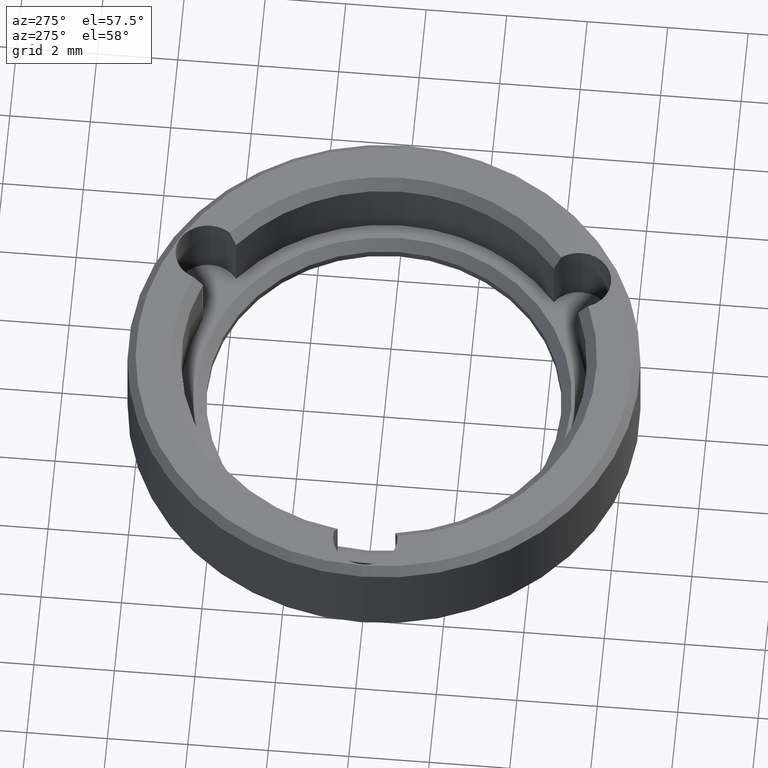
[diagram: clean part render]
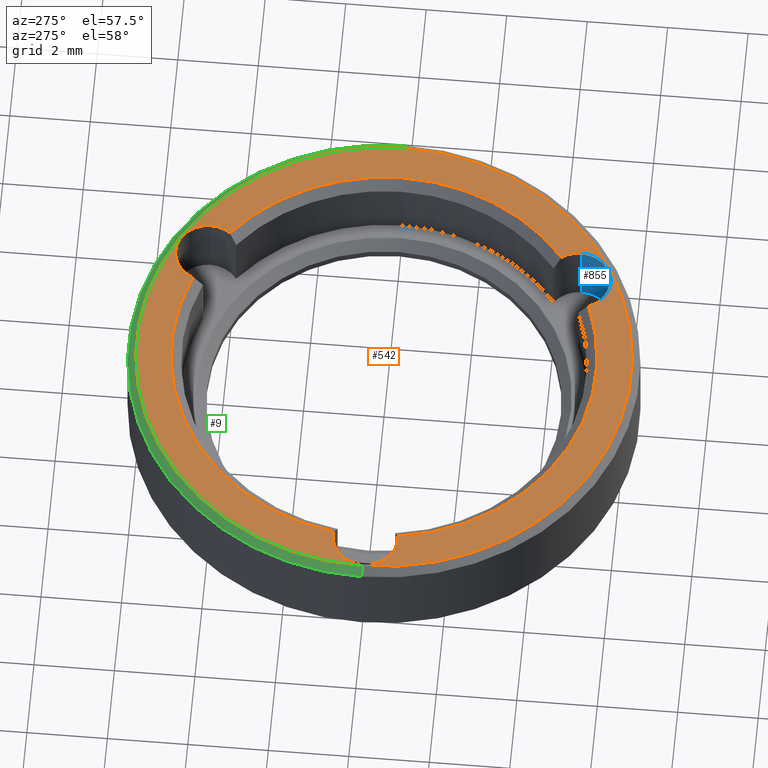
[diagram: same view with three faces highlighted in distinct colors, each labeled with its STEP entity id]
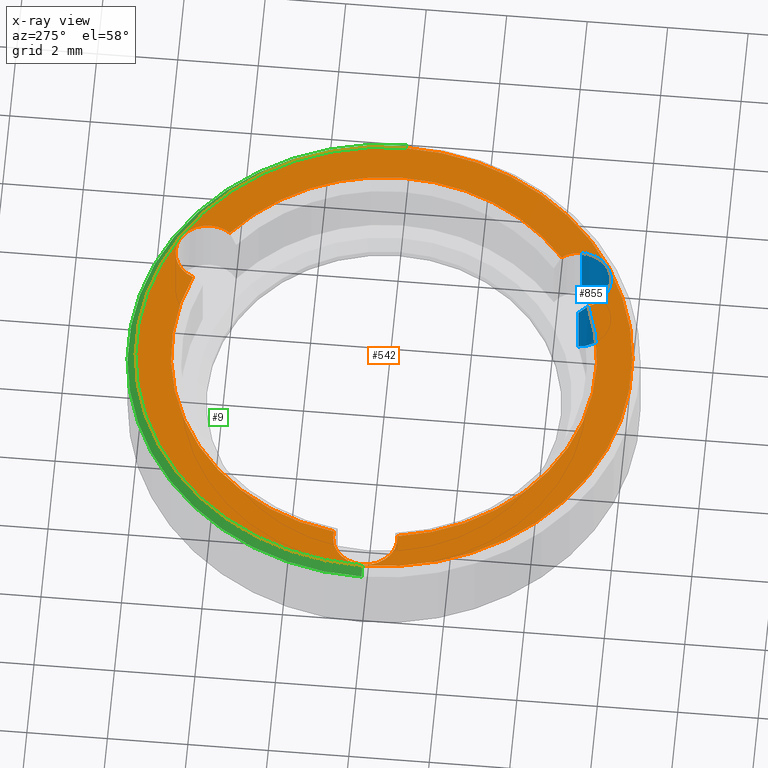
[diagram: x-ray of the same camera — body ghosted, the three highlighted faces saturated]
A machine part, auxiliary view with three faces highlighted in distinct colors.
The next image is the same camera in x-ray (body ghosted, the three faces saturated) — at least one of them is partly hidden behind the body in this view.
Their STEP definitions:

[orange] entity #542 — the highlighted planar face has unit normal (0, 0, 1).
#14 = EDGE_LOOP ( 'NONE', ( #421, #575 ) ) ;
#20 = ORIENTED_EDGE ( 'NONE', *, *, #68, .F. ) ;
#25 = ORIENTED_EDGE ( 'NONE', *, *, #703, .F. ) ;
#35 = DIRECTION ( 'NONE',  ( 0.000000000000000000, 0.000000000000000000, 1.000000000000000000 ) ) ;
#43 = AXIS2_PLACEMENT_3D ( 'NONE', #224, #650, #218 ) ;
#60 = CIRCLE ( 'NONE', #146, 6.149999999999997691 ) ;
#64 = DIRECTION ( 'NONE',  ( 1.000000000000000000, 1.776356839400250465E-15, 0.000000000000000000 ) ) ;
#68 = EDGE_CURVE ( 'NONE', #430, #885, #745, .T. ) ;
#89 = CIRCLE ( 'NONE', #609, 0.8000000000000012657 ) ;
#99 = EDGE_CURVE ( 'NONE', #250, #430, #707, .T. ) ;
#134 = CARTESIAN_POINT ( 'NONE',  ( 0.000000000000000000, 0.000000000000000000, 2.500000000000000000 ) ) ;
#140 = DIRECTION ( 'NONE',  ( 0.000000000000000000, 0.000000000000000000, 1.000000000000000000 ) ) ;
#145 = CIRCLE ( 'NONE', #427, 5.275000000000003908 ) ;
#146 = AXIS2_PLACEMENT_3D ( 'NONE', #247, #35, #300 ) ;
#148 = DIRECTION ( 'NONE',  ( 1.000000000000000000, -8.881784197001252323E-16, 0.000000000000000000 ) ) ;
#149 = CARTESIAN_POINT ( 'NONE',  ( 2.662500000000021849, -4.611585275152124019, 2.500000000000000000 ) ) ;
#155 = ORIENTED_EDGE ( 'NONE', *, *, #260, .T. ) ;
#173 = EDGE_CURVE ( 'NONE', #250, #899, #236, .T. ) ;
#185 = VERTEX_POINT ( 'NONE', #418 ) ;
#205 = EDGE_CURVE ( 'NONE', #185, #476, #349, .T. ) ;
#213 = CARTESIAN_POINT ( 'NONE',  ( 0.000000000000000000, 0.000000000000000000, 2.500000000000000000 ) ) ;
#218 = DIRECTION ( 'NONE',  ( 1.000000000000000000, 0.000000000000000000, 0.000000000000000000 ) ) ;
#224 = CARTESIAN_POINT ( 'NONE',  ( 0.000000000000000000, 0.000000000000000000, 2.500000000000000000 ) ) ;
#234 = VERTEX_POINT ( 'NONE', #496 ) ;
#236 = CIRCLE ( 'NONE', #442, 5.275000000000003908 ) ;
#242 = CARTESIAN_POINT ( 'NONE',  ( 3.462499999999957723, 4.611585275152160435, 2.500000000000000000 ) ) ;
#247 = CARTESIAN_POINT ( 'NONE',  ( 0.000000000000000000, 0.000000000000000000, 2.500000000000000000 ) ) ;
#250 = VERTEX_POINT ( 'NONE', #711 ) ;
#253 = VERTEX_POINT ( 'NONE', #858 ) ;
#260 = EDGE_CURVE ( 'NONE', #899, #253, #869, .T. ) ;
#266 = DIRECTION ( 'NONE',  ( 0.000000000000000000, 0.000000000000000000, 1.000000000000000000 ) ) ;
#300 = DIRECTION ( 'NONE',  ( 1.000000000000000000, 0.000000000000000000, 0.000000000000000000 ) ) ;
#306 = CARTESIAN_POINT ( 'NONE',  ( 5.275000000000003908, 0.000000000000000000, 2.500000000000000000 ) ) ;
#315 = ORIENTED_EDGE ( 'NONE', *, *, #715, .T. ) ;
#322 = AXIS2_PLACEMENT_3D ( 'NONE', #149, #502, #579 ) ;
#324 = AXIS2_PLACEMENT_3D ( 'NONE', #213, #352, #148 ) ;
#333 = DIRECTION ( 'NONE',  ( 0.000000000000000000, 0.000000000000000000, 1.000000000000000000 ) ) ;
#346 = CARTESIAN_POINT ( 'NONE',  ( 3.462500000000023004, -4.611585275152124019, 2.500000000000000000 ) ) ;
#349 = CIRCLE ( 'NONE', #322, 0.8000000000000012657 ) ;
#352 = DIRECTION ( 'NONE',  ( -0.000000000000000000, -0.000000000000000000, -1.000000000000000000 ) ) ;
#364 = AXIS2_PLACEMENT_3D ( 'NONE', #559, #266, #545 ) ;
#404 = DIRECTION ( 'NONE',  ( -0.000000000000000000, -0.000000000000000000, -1.000000000000000000 ) ) ;
#405 = CARTESIAN_POINT ( 'NONE',  ( 2.662499999999956568, 4.611585275152160435, 2.500000000000000000 ) ) ;
#409 = AXIS2_PLACEMENT_3D ( 'NONE', #405, #907, #690 ) ;
#418 = CARTESIAN_POINT ( 'NONE',  ( 1.921313747115156234, -4.912654932431785859, 2.500000000000000000 ) ) ;
#419 = DIRECTION ( 'NONE',  ( 1.000000000000000000, 0.000000000000000000, 0.000000000000000000 ) ) ;
#421 = ORIENTED_EDGE ( 'NONE', *, *, #831, .T. ) ;
#427 = AXIS2_PLACEMENT_3D ( 'NONE', #483, #404, #618 ) ;
#430 = VERTEX_POINT ( 'NONE', #242 ) ;
#442 = AXIS2_PLACEMENT_3D ( 'NONE', #134, #699, #64 ) ;
#468 = CARTESIAN_POINT ( 'NONE',  ( 2.662500000000021849, -4.611585275152124019, 2.500000000000000000 ) ) ;
#476 = VERTEX_POINT ( 'NONE', #346 ) ;
#478 = ORIENTED_EDGE ( 'NONE', *, *, #603, .F. ) ;
#483 = CARTESIAN_POINT ( 'NONE',  ( 0.000000000000000000, 0.000000000000000000, 2.500000000000000000 ) ) ;
#489 = AXIS2_PLACEMENT_3D ( 'NONE', #520, #806, #881 ) ;
#496 = CARTESIAN_POINT ( 'NONE',  ( -5.215140845070425968, 0.7924209525739209781, 2.500000000000000000 ) ) ;
#499 = EDGE_CURVE ( 'NONE', #185, #743, #145, .T. ) ;
#502 = DIRECTION ( 'NONE',  ( 0.000000000000000000, 0.000000000000000000, 1.000000000000000000 ) ) ;
#518 = ORIENTED_EDGE ( 'NONE', *, *, #173, .T. ) ;
#520 = CARTESIAN_POINT ( 'NONE',  ( 0.000000000000000000, 0.000000000000000000, 2.500000000000000000 ) ) ;
#542 = ADVANCED_FACE ( 'NONE', ( #767, #900 ), #692, .T. ) ;
#545 = DIRECTION ( 'NONE',  ( -0.4999999999999920064, -0.8660254037844432595, 0.000000000000000000 ) ) ;
#554 = DIRECTION ( 'NONE',  ( 0.000000000000000000, 0.000000000000000000, 1.000000000000000000 ) ) ;
#559 = CARTESIAN_POINT ( 'NONE',  ( 2.662499999999956568, 4.611585275152160435, 2.500000000000000000 ) ) ;
#575 = ORIENTED_EDGE ( 'NONE', *, *, #798, .T. ) ;
#579 = DIRECTION ( 'NONE',  ( -0.5000000000000037748, 0.8660254037844364872, 0.000000000000000000 ) ) ;
#589 = CARTESIAN_POINT ( 'NONE',  ( -6.149999999999997691, 0.000000000000000000, 2.500000000000000000 ) ) ;
#594 = CARTESIAN_POINT ( 'NONE',  ( 1.921313747115087178, 4.912654932431814281, 2.500000000000000000 ) ) ;
#599 = AXIS2_PLACEMENT_3D ( 'NONE', #761, #333, #774 ) ;
#603 = EDGE_CURVE ( 'NONE', #476, #253, #771, .T. ) ;
#609 = AXIS2_PLACEMENT_3D ( 'NONE', #791, #140, #419 ) ;
#618 = DIRECTION ( 'NONE',  ( 1.000000000000000000, 0.000000000000000000, 0.000000000000000000 ) ) ;
#627 = DIRECTION ( 'NONE',  ( -0.5000000000000037748, 0.8660254037844364872, 0.000000000000000000 ) ) ;
#650 = DIRECTION ( 'NONE',  ( -0.000000000000000000, -0.000000000000000000, -1.000000000000000000 ) ) ;
#652 = VERTEX_POINT ( 'NONE', #719 ) ;
#654 = ORIENTED_EDGE ( 'NONE', *, *, #499, .T. ) ;
#669 = AXIS2_PLACEMENT_3D ( 'NONE', #468, #554, #627 ) ;
#690 = DIRECTION ( 'NONE',  ( -0.4999999999999920064, -0.8660254037844432595, 0.000000000000000000 ) ) ;
#692 = PLANE ( 'NONE',  #599 ) ;
#699 = DIRECTION ( 'NONE',  ( -0.000000000000000000, -0.000000000000000000, -1.000000000000000000 ) ) ;
#703 = EDGE_CURVE ( 'NONE', #234, #743, #89, .T. ) ;
#707 = CIRCLE ( 'NONE', #364, 0.8000000000000010436 ) ;
#709 = CARTESIAN_POINT ( 'NONE',  ( -5.215140845070425968, -0.7924209525739221993, 2.500000000000000000 ) ) ;
#710 = CIRCLE ( 'NONE', #489, 6.149999999999997691 ) ;
#711 = CARTESIAN_POINT ( 'NONE',  ( 3.293827097955254857, 4.120233979857904849, 2.500000000000000000 ) ) ;
#715 = EDGE_CURVE ( 'NONE', #234, #885, #725, .T. ) ;
#719 = CARTESIAN_POINT ( 'NONE',  ( 6.149999999999997691, 7.654042494670955634E-16, 2.500000000000000000 ) ) ;
#725 = CIRCLE ( 'NONE', #324, 5.275000000000003908 ) ;
#743 = VERTEX_POINT ( 'NONE', #709 ) ;
#745 = CIRCLE ( 'NONE', #409, 0.8000000000000010436 ) ;
#761 = CARTESIAN_POINT ( 'NONE',  ( 0.000000000000000000, 0.000000000000000000, 2.500000000000000000 ) ) ;
#767 = FACE_BOUND ( 'NONE', #894, .T. ) ;
#771 = CIRCLE ( 'NONE', #669, 0.8000000000000012657 ) ;
#774 = DIRECTION ( 'NONE',  ( 1.000000000000000000, 0.000000000000000000, -0.000000000000000000 ) ) ;
#791 = CARTESIAN_POINT ( 'NONE',  ( -5.325000000000000178, -6.521244205459656303E-16, 2.500000000000000000 ) ) ;
#798 = EDGE_CURVE ( 'NONE', #652, #805, #60, .T. ) ;
#805 = VERTEX_POINT ( 'NONE', #589 ) ;
#806 = DIRECTION ( 'NONE',  ( 0.000000000000000000, 0.000000000000000000, 1.000000000000000000 ) ) ;
#831 = EDGE_CURVE ( 'NONE', #805, #652, #710, .T. ) ;
#858 = CARTESIAN_POINT ( 'NONE',  ( 3.293827097955312144, -4.120233979857857776, 2.500000000000000000 ) ) ;
#860 = ORIENTED_EDGE ( 'NONE', *, *, #205, .F. ) ;
#864 = ORIENTED_EDGE ( 'NONE', *, *, #99, .F. ) ;
#869 = CIRCLE ( 'NONE', #43, 5.275000000000003908 ) ;
#881 = DIRECTION ( 'NONE',  ( 1.000000000000000000, 0.000000000000000000, 0.000000000000000000 ) ) ;
#885 = VERTEX_POINT ( 'NONE', #594 ) ;
#894 = EDGE_LOOP ( 'NONE', ( #864, #518, #155, #478, #860, #654, #25, #315, #20 ) ) ;
#899 = VERTEX_POINT ( 'NONE', #306 ) ;
#900 = FACE_OUTER_BOUND ( 'NONE', #14, .T. ) ;
#907 = DIRECTION ( 'NONE',  ( 0.000000000000000000, 0.000000000000000000, 1.000000000000000000 ) ) ;

[blue] entity #855 — the highlighted cylindrical surface (edge-blend (fillet) strip) has radius 0.8 mm, axis along (0, -0, 1).
#38 = EDGE_CURVE ( 'NONE', #85, #185, #377, .T. ) ;
#65 = ORIENTED_EDGE ( 'NONE', *, *, #205, .T. ) ;
#85 = VERTEX_POINT ( 'NONE', #193 ) ;
#103 = EDGE_CURVE ( 'NONE', #85, #509, #138, .T. ) ;
#105 = AXIS2_PLACEMENT_3D ( 'NONE', #313, #746, #449 ) ;
#110 = FACE_OUTER_BOUND ( 'NONE', #139, .T. ) ;
#121 = CARTESIAN_POINT ( 'NONE',  ( 1.864375986210773162, -4.666339805676457786, 2.249999999999997780 ) ) ;
#138 = LINE ( 'NONE', #686, #190 ) ;
#139 = EDGE_LOOP ( 'NONE', ( #285, #235, #863, #243, #65 ) ) ;
#149 = CARTESIAN_POINT ( 'NONE',  ( 2.662500000000021849, -4.611585275152124019, 2.500000000000000000 ) ) ;
#164 = VECTOR ( 'NONE', #736, 1000.000000000000000 ) ;
#185 = VERTEX_POINT ( 'NONE', #418 ) ;
#190 = VECTOR ( 'NONE', #619, 1000.000000000000000 ) ;
#193 = CARTESIAN_POINT ( 'NONE',  ( 1.864375986210773162, -4.666339805676457786, 2.249999999999997780 ) ) ;
#205 = EDGE_CURVE ( 'NONE', #185, #476, #349, .T. ) ;
#235 = ORIENTED_EDGE ( 'NONE', *, *, #749, .T. ) ;
#243 = ORIENTED_EDGE ( 'NONE', *, *, #38, .T. ) ;
#244 = LINE ( 'NONE', #458, #164 ) ;
#264 = CARTESIAN_POINT ( 'NONE',  ( 1.864375986210773162, -4.666339805676459562, 0.7000000000000000666 ) ) ;
#283 = CARTESIAN_POINT ( 'NONE',  ( 2.662500000000021849, -4.611585275152124019, 0.7000000000000000666 ) ) ;
#285 = ORIENTED_EDGE ( 'NONE', *, *, #825, .F. ) ;
#294 = CIRCLE ( 'NONE', #563, 0.8000000000000008216 ) ;
#313 = CARTESIAN_POINT ( 'NONE',  ( 2.662500000000021849, -4.611585275152124019, -1.562741699796954542 ) ) ;
#322 = AXIS2_PLACEMENT_3D ( 'NONE', #149, #502, #579 ) ;
#346 = CARTESIAN_POINT ( 'NONE',  ( 3.462500000000023004, -4.611585275152124019, 2.500000000000000000 ) ) ;
#349 = CIRCLE ( 'NONE', #322, 0.8000000000000012657 ) ;
#377 = B_SPLINE_CURVE_WITH_KNOTS ( 'NONE', 3,
 ( #121, #631, #762, #845 ),
 .UNSPECIFIED., .F., .F.,
 ( 4, 4 ),
 ( 2.881602634184302082E-07, 0.0003558342898762007021 ),
 .UNSPECIFIED. ) ;
#418 = CARTESIAN_POINT ( 'NONE',  ( 1.921313747115156234, -4.912654932431785859, 2.500000000000000000 ) ) ;
#449 = DIRECTION ( 'NONE',  ( 1.000000000000000000, 0.000000000000000000, 0.000000000000000000 ) ) ;
#458 = CARTESIAN_POINT ( 'NONE',  ( 3.462500000000023004, -4.611585275152124019, -1.562741699796954542 ) ) ;
#476 = VERTEX_POINT ( 'NONE', #346 ) ;
#502 = DIRECTION ( 'NONE',  ( 0.000000000000000000, 0.000000000000000000, 1.000000000000000000 ) ) ;
#509 = VERTEX_POINT ( 'NONE', #264 ) ;
#563 = AXIS2_PLACEMENT_3D ( 'NONE', #283, #573, #795 ) ;
#573 = DIRECTION ( 'NONE',  ( -0.000000000000000000, -0.000000000000000000, -1.000000000000000000 ) ) ;
#579 = DIRECTION ( 'NONE',  ( -0.5000000000000037748, 0.8660254037844364872, 0.000000000000000000 ) ) ;
#585 = CARTESIAN_POINT ( 'NONE',  ( 3.462500000000023004, -4.611585275152124019, 0.7000000000000000666 ) ) ;
#619 = DIRECTION ( 'NONE',  ( -0.000000000000000000, 0.000000000000000000, -1.000000000000000000 ) ) ;
#631 = CARTESIAN_POINT ( 'NONE',  ( 1.870290805136727075, -4.752556580376425366, 2.332257555038371066 ) ) ;
#661 = CYLINDRICAL_SURFACE ( 'NONE', #105, 0.8000000000000008216 ) ;
#686 = CARTESIAN_POINT ( 'NONE',  ( 1.864375986210773384, -4.666339805676459562, 1.600000000000000311 ) ) ;
#736 = DIRECTION ( 'NONE',  ( 0.000000000000000000, -0.000000000000000000, 1.000000000000000000 ) ) ;
#746 = DIRECTION ( 'NONE',  ( 0.000000000000000000, -0.000000000000000000, 1.000000000000000000 ) ) ;
#749 = EDGE_CURVE ( 'NONE', #782, #509, #294, .T. ) ;
#762 = CARTESIAN_POINT ( 'NONE',  ( 1.889573237123907123, -4.834514777500079852, 2.415666522135950789 ) ) ;
#782 = VERTEX_POINT ( 'NONE', #585 ) ;
#795 = DIRECTION ( 'NONE',  ( 1.000000000000000000, 0.000000000000000000, 0.000000000000000000 ) ) ;
#825 = EDGE_CURVE ( 'NONE', #782, #476, #244, .T. ) ;
#845 = CARTESIAN_POINT ( 'NONE',  ( 1.921313747115156234, -4.912654932431785859, 2.500000000000000000 ) ) ;
#855 = ADVANCED_FACE ( 'NONE', ( #110 ), #661, .F. ) ;
#863 = ORIENTED_EDGE ( 'NONE', *, *, #103, .F. ) ;

[green] entity #9 — the highlighted conical surface has half-angle 45 deg.
#9 = ADVANCED_FACE ( 'NONE', ( #808 ), #455, .T. ) ;
#21 = ORIENTED_EDGE ( 'NONE', *, *, #184, .F. ) ;
#30 = VECTOR ( 'NONE', #586, 1000.000000000000114 ) ;
#35 = DIRECTION ( 'NONE',  ( 0.000000000000000000, 0.000000000000000000, 1.000000000000000000 ) ) ;
#60 = CIRCLE ( 'NONE', #146, 6.149999999999997691 ) ;
#84 = LINE ( 'NONE', #296, #30 ) ;
#100 = CARTESIAN_POINT ( 'NONE',  ( 0.000000000000000000, 0.000000000000000000, 2.299999999999998490 ) ) ;
#113 = CARTESIAN_POINT ( 'NONE',  ( 0.000000000000000000, 0.000000000000000000, 2.500000000000000000 ) ) ;
#146 = AXIS2_PLACEMENT_3D ( 'NONE', #247, #35, #300 ) ;
#184 = EDGE_CURVE ( 'NONE', #805, #608, #344, .T. ) ;
#247 = CARTESIAN_POINT ( 'NONE',  ( 0.000000000000000000, 0.000000000000000000, 2.500000000000000000 ) ) ;
#262 = AXIS2_PLACEMENT_3D ( 'NONE', #113, #380, #395 ) ;
#296 = CARTESIAN_POINT ( 'NONE',  ( 6.149999999999997691, 7.531577814756219106E-16, 2.500000000000000000 ) ) ;
#297 = ORIENTED_EDGE ( 'NONE', *, *, #798, .F. ) ;
#300 = DIRECTION ( 'NONE',  ( 1.000000000000000000, 0.000000000000000000, 0.000000000000000000 ) ) ;
#301 = EDGE_CURVE ( 'NONE', #652, #640, #84, .T. ) ;
#344 = LINE ( 'NONE', #616, #425 ) ;
#379 = DIRECTION ( 'NONE',  ( 0.000000000000000000, 0.000000000000000000, -1.000000000000000000 ) ) ;
#380 = DIRECTION ( 'NONE',  ( 0.000000000000000000, 0.000000000000000000, -1.000000000000000000 ) ) ;
#395 = DIRECTION ( 'NONE',  ( -1.000000000000000000, 0.000000000000000000, 0.000000000000000000 ) ) ;
#397 = EDGE_CURVE ( 'NONE', #608, #640, #695, .T. ) ;
#425 = VECTOR ( 'NONE', #893, 1000.000000000000114 ) ;
#439 = ORIENTED_EDGE ( 'NONE', *, *, #397, .F. ) ;
#455 = CONICAL_SURFACE ( 'NONE', #262, 6.149999999999997691, 0.7853981633974504994 ) ;
#526 = ORIENTED_EDGE ( 'NONE', *, *, #301, .T. ) ;
#586 = DIRECTION ( 'NONE',  ( 0.7071067811865490160, 8.659560562354952580E-17, -0.7071067811865460184 ) ) ;
#589 = CARTESIAN_POINT ( 'NONE',  ( -6.149999999999997691, 0.000000000000000000, 2.500000000000000000 ) ) ;
#608 = VERTEX_POINT ( 'NONE', #755 ) ;
#616 = CARTESIAN_POINT ( 'NONE',  ( -6.149999999999997691, 0.000000000000000000, 2.500000000000000000 ) ) ;
#640 = VERTEX_POINT ( 'NONE', #780 ) ;
#652 = VERTEX_POINT ( 'NONE', #719 ) ;
#675 = EDGE_LOOP ( 'NONE', ( #297, #526, #439, #21 ) ) ;
#695 = CIRCLE ( 'NONE', #770, 6.349999999999999645 ) ;
#719 = CARTESIAN_POINT ( 'NONE',  ( 6.149999999999997691, 7.654042494670955634E-16, 2.500000000000000000 ) ) ;
#752 = DIRECTION ( 'NONE',  ( 1.000000000000000000, 0.000000000000000000, 0.000000000000000000 ) ) ;
#755 = CARTESIAN_POINT ( 'NONE',  ( -6.349999999999999645, 0.000000000000000000, 2.299999999999998490 ) ) ;
#770 = AXIS2_PLACEMENT_3D ( 'NONE', #100, #379, #752 ) ;
#780 = CARTESIAN_POINT ( 'NONE',  ( 6.349999999999999645, 7.776507174585692163E-16, 2.299999999999998490 ) ) ;
#798 = EDGE_CURVE ( 'NONE', #652, #805, #60, .T. ) ;
#805 = VERTEX_POINT ( 'NONE', #589 ) ;
#808 = FACE_OUTER_BOUND ( 'NONE', #675, .T. ) ;
#893 = DIRECTION ( 'NONE',  ( -0.7071067811865490160, 0.000000000000000000, -0.7071067811865460184 ) ) ;